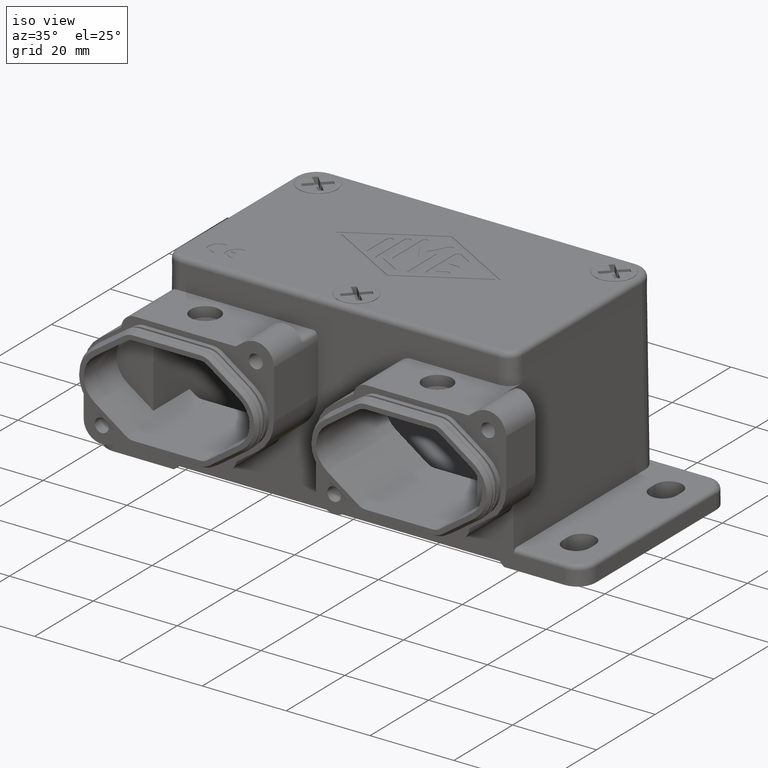
[diagram: clean part render]
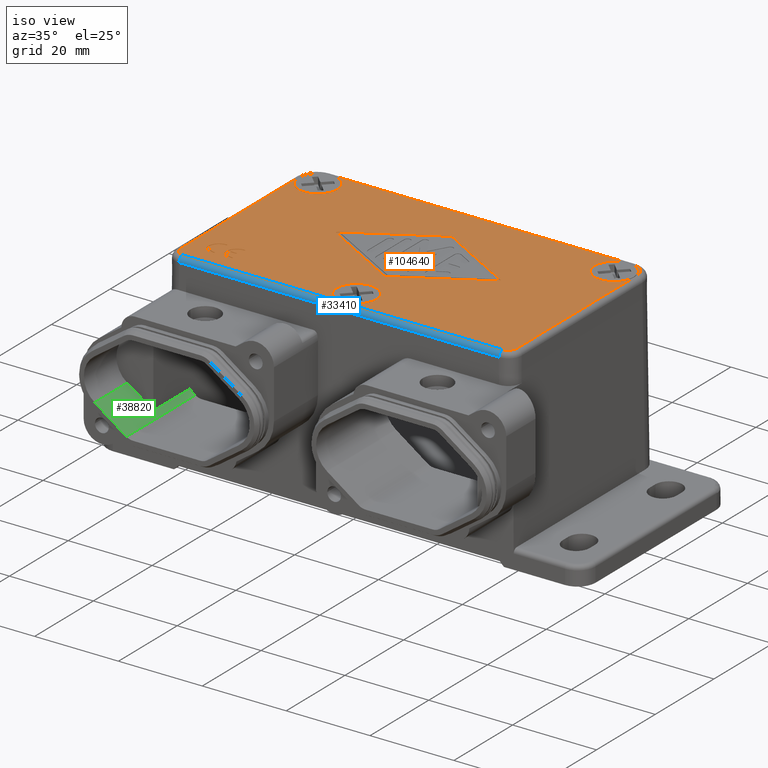
[diagram: same view with three faces highlighted in distinct colors, each labeled with its STEP entity id]
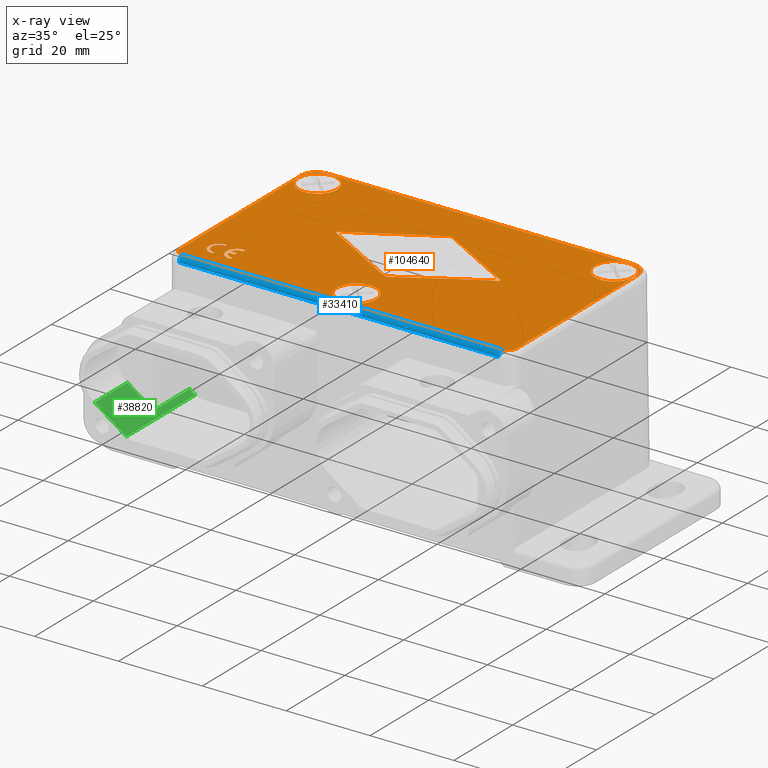
[diagram: x-ray of the same camera — body ghosted, the three highlighted faces saturated]
A machine part, iso view with three faces highlighted in distinct colors.
The next image is the same camera in x-ray (body ghosted, the three faces saturated) — at least one of them is partly hidden behind the body in this view.
Their STEP definitions:

[orange] entity #104640 — the highlighted planar face has unit normal (0, 0, 1).
#33100=CARTESIAN_POINT('',(10.349999479947,-20.200122,21.050000677173));
#33110=VERTEX_POINT('',#33100);
#33160=CARTESIAN_POINT('',(-27.800000520053,-20.200122,21.050000677173))
;
#33170=DIRECTION('',(-1.,0.,0.));
#33180=VECTOR('',#33170,1.);
#33190=LINE('',#33160,#33180);
#33200=CARTESIAN_POINT('',(-65.950000520053,-20.200122,21.050000677173))
;
#33210=VERTEX_POINT('',#33200);
#33220=EDGE_CURVE('',#33110,#33210,#33190,.T.);
#45360=CARTESIAN_POINT('',(12.349999479947,-22.200122,21.050000677173));
#45370=VERTEX_POINT('',#45360);
#45400=CARTESIAN_POINT('',(10.349999479947,-22.200122,21.050000677173));
#45410=DIRECTION('',(0.,0.,1.));
#45420=DIRECTION('',(0.,-1.,0.));
#45430=AXIS2_PLACEMENT_3D('',#45400,#45410,#45420);
#45440=CIRCLE('',#45430,2.);
#45450=EDGE_CURVE('',#45370,#33110,#45440,.T.);
#70360=CARTESIAN_POINT('',(12.349999479947,-63.3001219336676,
21.050000677173));
#70370=VERTEX_POINT('',#70360);
#70420=CARTESIAN_POINT('',(12.349999479947,-22.9001219668338,
21.050000677173));
#70430=DIRECTION('',(0.,1.,0.));
#70440=VECTOR('',#70430,1.);
#70450=LINE('',#70420,#70440);
#70460=EDGE_CURVE('',#70370,#45370,#70450,.T.);
#73730=CARTESIAN_POINT('',(8.549999479947,-67.1001219336676,
21.050000677173));
#73740=VERTEX_POINT('',#73730);
#73770=CARTESIAN_POINT('',(8.549999479947,-63.3001219336676,
21.050000677173));
#73780=DIRECTION('',(0.,0.,1.));
#73790=DIRECTION('',(0.,-1.,0.));
#73800=AXIS2_PLACEMENT_3D('',#73770,#73780,#73790);
#73810=CIRCLE('',#73800,3.8);
#73820=EDGE_CURVE('',#73740,#70370,#73810,.T.);
#101130=CARTESIAN_POINT('',(-27.800000520053,-22.9001219668338,
21.050000677173));
#101140=DIRECTION('',(-0.,0.,1.));
#101150=DIRECTION('',(0.,-1.,0.));
#101160=AXIS2_PLACEMENT_3D('',#101130,#101140,#101150);
#101170=PLANE('',#101160);
#101180=CARTESIAN_POINT('',(7.54999947994703,-62.3002439336676,
21.050000677173));
#101190=DIRECTION('',(-1.94344779344656E-16,1.30236863879995E-16,-1.));
#101200=DIRECTION('',(0.309016994374947,-0.951056516295154,
-1.83918457640462E-16));
#101210=AXIS2_PLACEMENT_3D('',#101180,#101190,#101200);
#101220=CIRCLE('',#101210,4.7);
#101230=CARTESIAN_POINT('',(6.09761960638477,-57.8302783070803,
21.050000677173));
#101240=VERTEX_POINT('',#101230);
#101250=CARTESIAN_POINT('',(9.00237935350928,-66.7702095602548,
21.050000677173));
#101260=VERTEX_POINT('',#101250);
#101270=EDGE_CURVE('',#101240,#101260,#101220,.T.);
#101280=ORIENTED_EDGE('',*,*,#101270,.T.);
#101290=CARTESIAN_POINT('',(3.87937683194589,-59.3648513916076,
21.050000677173));
#101300=VERTEX_POINT('',#101290);
#101310=EDGE_CURVE('',#101300,#101240,#101220,.T.);
#101320=ORIENTED_EDGE('',*,*,#101310,.T.);
#101330=EDGE_CURVE('',#101260,#101300,#101220,.T.);
#101340=ORIENTED_EDGE('',*,*,#101330,.T.);
#101350=EDGE_LOOP('',(#101340,#101320,#101280));
#101360=FACE_BOUND('',#101350,.T.);
#101370=CARTESIAN_POINT('',(-63.150000520053,-62.3002439336676,
21.050000677173));
#101380=DIRECTION('',(-1.94344779344656E-16,1.30236863879995E-16,-1.));
#101390=DIRECTION('',(0.309016994374947,-0.951056516295154,
-1.83918457640462E-16));
#101400=AXIS2_PLACEMENT_3D('',#101370,#101380,#101390);
#101410=CIRCLE('',#101400,4.70000000000001);
#101420=CARTESIAN_POINT('',(-64.6023803936152,-57.8302783070803,
21.050000677173));
#101430=VERTEX_POINT('',#101420);
#101440=CARTESIAN_POINT('',(-61.6976206464907,-66.7702095602548,
21.050000677173));
#101450=VERTEX_POINT('',#101440);
#101460=EDGE_CURVE('',#101430,#101450,#101410,.T.);
#101470=ORIENTED_EDGE('',*,*,#101460,.T.);
#101480=CARTESIAN_POINT('',(-66.8206231680541,-59.3648513916076,
21.050000677173));
#101490=VERTEX_POINT('',#101480);
#101500=EDGE_CURVE('',#101490,#101430,#101410,.T.);
#101510=ORIENTED_EDGE('',*,*,#101500,.T.);
#101520=EDGE_CURVE('',#101450,#101490,#101410,.T.);
#101530=ORIENTED_EDGE('',*,*,#101520,.T.);
#101540=EDGE_LOOP('',(#101530,#101510,#101470));
#101550=FACE_BOUND('',#101540,.T.);
#101560=CARTESIAN_POINT('',(-27.800000520053,-56.5,21.050000677173));
#101570=DIRECTION('',(0.,0.,1.));
#101580=DIRECTION('',(-1.,0.,0.));
#101590=AXIS2_PLACEMENT_3D('',#101560,#101570,#101580);
#101600=CIRCLE('',#101590,0.75);
#101610=CARTESIAN_POINT('',(-28.1721911623186,-57.1511329555551,
21.050000677173));
#101620=VERTEX_POINT('',#101610);
#101630=CARTESIAN_POINT('',(-27.4278161412027,-57.1511365357126,
21.050000677173));
#101640=VERTEX_POINT('',#101630);
#101650=EDGE_CURVE('',#101620,#101640,#101600,.T.);
#101660=ORIENTED_EDGE('',*,*,#101650,.F.);
#101670=CARTESIAN_POINT('',(0.,-41.4736186053743,21.050000677173));
#101680=DIRECTION('',(-0.86818204761683,-0.496245838467033,0.));
#101690=VECTOR('',#101680,1.);
#101700=LINE('',#101670,#101690);
#101710=CARTESIAN_POINT('',(-8.48911816992265,-46.3259299099479,
21.050000677173));
#101720=VERTEX_POINT('',#101710);
#101730=EDGE_CURVE('',#101720,#101640,#101700,.T.);
#101740=ORIENTED_EDGE('',*,*,#101730,.T.);
#101750=CARTESIAN_POINT('',(-8.67541707104315,-46.,21.050000677173));
#101760=DIRECTION('',(0.,0.,1.));
#101770=DIRECTION('',(-1.,0.,0.));
#101780=AXIS2_PLACEMENT_3D('',#101750,#101760,#101770);
#101790=CIRCLE('',#101780,0.375416550990178);
#101800=CARTESIAN_POINT('',(-8.48911816992262,-45.6740700900519,
21.050000677173));
#101810=VERTEX_POINT('',#101800);
#101820=EDGE_CURVE('',#101720,#101810,#101790,.T.);
#101830=ORIENTED_EDGE('',*,*,#101820,.F.);
#101840=CARTESIAN_POINT('',(0.,-50.5263813946254,21.050000677173));
#101850=DIRECTION('',(0.868182047616835,-0.496245838467024,0.));
#101860=VECTOR('',#101850,1.);
#101870=LINE('',#101840,#101860);
#101880=CARTESIAN_POINT('',(-27.4278161412028,-34.8488634642873,
21.050000677173));
#101890=VERTEX_POINT('',#101880);
#101900=EDGE_CURVE('',#101890,#101810,#101870,.T.);
#101910=ORIENTED_EDGE('',*,*,#101900,.T.);
#101920=CARTESIAN_POINT('',(-27.800000520053,-35.5,21.050000677173));
#101930=DIRECTION('',(0.,0.,1.));
#101940=DIRECTION('',(-1.,0.,0.));
#101950=AXIS2_PLACEMENT_3D('',#101920,#101930,#101940);
#101960=CIRCLE('',#101950,0.75);
#101970=CARTESIAN_POINT('',(-28.1721911623186,-34.8488670444449,
21.050000677173));
#101980=VERTEX_POINT('',#101970);
#101990=EDGE_CURVE('',#101890,#101980,#101960,.T.);
#102000=ORIENTED_EDGE('',*,*,#101990,.F.);
#102010=CARTESIAN_POINT('',(0.,-18.7455108354322,21.050000677173));
#102020=DIRECTION('',(0.8681772740735,0.49625418968741,0.));
#102030=VECTOR('',#102020,1.);
#102040=LINE('',#102010,#102030);
#102050=CARTESIAN_POINT('',(-47.1110958411858,-45.6744335222224,
21.050000677173));
#102060=VERTEX_POINT('',#102050);
#102070=EDGE_CURVE('',#102060,#101980,#102040,.T.);
#102080=ORIENTED_EDGE('',*,*,#102070,.T.);
#102090=CARTESIAN_POINT('',(-46.925000520053,-46.,21.050000677173));
#102100=DIRECTION('',(0.,0.,1.));
#102110=DIRECTION('',(-1.,0.,0.));
#102120=AXIS2_PLACEMENT_3D('',#102090,#102100,#102110);
#102130=CIRCLE('',#102120,0.375000000000014);
#102140=CARTESIAN_POINT('',(-47.1110958411858,-46.3255664777776,
21.050000677173));
#102150=VERTEX_POINT('',#102140);
#102160=EDGE_CURVE('',#102060,#102150,#102130,.T.);
#102170=ORIENTED_EDGE('',*,*,#102160,.F.);
#102180=CARTESIAN_POINT('',(0.,-73.254489164568,21.050000677173));
#102190=DIRECTION('',(-0.868177274073497,0.496254189687414,0.));
#102200=VECTOR('',#102190,1.);
#102210=LINE('',#102180,#102200);
#102220=EDGE_CURVE('',#101620,#102150,#102210,.T.);
#102230=ORIENTED_EDGE('',*,*,#102220,.T.);
#102240=EDGE_LOOP('',(#102230,#102170,#102080,#102000,#101910,#101830,
#101740,#101660));
#102250=FACE_BOUND('',#102240,.T.);
#102260=CARTESIAN_POINT('',(5.80004225976489,0.,21.050000677173));
#102270=DIRECTION('',(8.54805752037086E-17,1.,0.));
#102280=VECTOR('',#102270,1.);
#102290=LINE('',#102260,#102280);
#102300=CARTESIAN_POINT('',(5.80004225976489,-24.75,21.050000677173));
#102310=VERTEX_POINT('',#102300);
#102320=CARTESIAN_POINT('',(5.80004225976489,-24.,21.050000677173));
#102330=VERTEX_POINT('',#102320);
#102340=EDGE_CURVE('',#102310,#102330,#102290,.T.);
#102350=ORIENTED_EDGE('',*,*,#102340,.T.);
#102360=CARTESIAN_POINT('',(0.,-24.75,21.050000677173));
#102370=DIRECTION('',(-1.,1.1857622397444E-16,0.));
#102380=VECTOR('',#102370,1.);
#102390=LINE('',#102360,#102380);
#102400=CARTESIAN_POINT('',(6.05004224672631,-24.75,21.050000677173));
#102410=VERTEX_POINT('',#102400);
#102420=EDGE_CURVE('',#102410,#102310,#102390,.T.);
#102430=ORIENTED_EDGE('',*,*,#102420,.T.);
#102440=CARTESIAN_POINT('',(6.05004224672631,-28.25,21.050000677173));
#102450=CARTESIAN_POINT('',(6.67517716642291,-28.2500000048602,
21.050000677173));
#102460=CARTESIAN_POINT('',(7.25301925687241,-27.9163827231399,
21.050000677173));
#102470=CARTESIAN_POINT('',(7.87815417937505,-26.8336172847153,
21.050000677173));
#102480=CARTESIAN_POINT('',(7.87815417937505,-26.1663827152847,
21.050000677173));
#102490=CARTESIAN_POINT('',(7.25301925687241,-25.0836172768601,
21.050000677173));
#102500=CARTESIAN_POINT('',(6.67517716642291,-24.7499999951398,
21.050000677173));
#102510=CARTESIAN_POINT('',(6.05004224672631,-24.75,21.050000677173));
#102520=B_SPLINE_CURVE_WITH_KNOTS('',3,(#102440,#102450,#102460,#102470,
#102480,#102490,#102500,#102510),.UNSPECIFIED.,.F.,.F.,(4,2,2,4),(0.,1.,
2.,3.),.UNSPECIFIED.);
#102530=CARTESIAN_POINT('',(6.05004224672631,-28.25,21.050000677173));
#102540=VERTEX_POINT('',#102530);
#102550=EDGE_CURVE('',#102540,#102410,#102520,.T.);
#102560=ORIENTED_EDGE('',*,*,#102550,.T.);
#102570=CARTESIAN_POINT('',(0.,-28.25,21.050000677173));
#102580=DIRECTION('',(1.,-1.1857622397444E-16,0.));
#102590=VECTOR('',#102580,1.);
#102600=LINE('',#102570,#102590);
#102610=CARTESIAN_POINT('',(5.80004225976489,-28.25,21.050000677173));
#102620=VERTEX_POINT('',#102610);
#102630=EDGE_CURVE('',#102620,#102540,#102600,.T.);
#102640=ORIENTED_EDGE('',*,*,#102630,.T.);
#102650=CARTESIAN_POINT('',(5.80004225976489,0.,21.050000677173));
#102660=DIRECTION('',(8.54805752037086E-17,1.,0.));
#102670=VECTOR('',#102660,1.);
#102680=LINE('',#102650,#102670);
#102690=CARTESIAN_POINT('',(5.80004225976489,-29.,21.050000677173));
#102700=VERTEX_POINT('',#102690);
#102710=EDGE_CURVE('',#102700,#102620,#102680,.T.);
#102720=ORIENTED_EDGE('',*,*,#102710,.T.);
#102730=CARTESIAN_POINT('',(0.,-29.,21.050000677173));
#102740=DIRECTION('',(-1.,1.1857622397444E-16,0.));
#102750=VECTOR('',#102740,1.);
#102760=LINE('',#102730,#102750);
#102770=CARTESIAN_POINT('',(6.05004224672631,-29.,21.050000677173));
#102780=VERTEX_POINT('',#102770);
#102790=EDGE_CURVE('',#102780,#102700,#102760,.T.);
#102800=ORIENTED_EDGE('',*,*,#102790,.T.);
#102810=CARTESIAN_POINT('',(6.05004224672631,-29.,21.050000677173));
#102820=CARTESIAN_POINT('',(6.94309213061921,-29.0000000048602,
21.050000677173));
#102830=CARTESIAN_POINT('',(7.76858082908543,-28.5234038876618,
21.050000677173));
#102840=CARTESIAN_POINT('',(8.66163071578438,-26.9765961201934,
21.050000677173));
#102850=CARTESIAN_POINT('',(8.66163071578438,-26.0234038798066,
21.050000677173));
#102860=CARTESIAN_POINT('',(7.76858082908546,-24.4765961123382,
21.050000677173));
#102870=CARTESIAN_POINT('',(6.94309213061921,-23.9999999951398,
21.050000677173));
#102880=CARTESIAN_POINT('',(6.05004224672631,-24.,21.050000677173));
#102890=B_SPLINE_CURVE_WITH_KNOTS('',3,(#102810,#102820,#102830,#102840,
#102850,#102860,#102870,#102880),.UNSPECIFIED.,.F.,.F.,(4,2,2,4),(0.,1.,
2.,3.),.UNSPECIFIED.);
#102900=CARTESIAN_POINT('',(6.05004224672631,-24.,21.050000677173));
#102910=VERTEX_POINT('',#102900);
#102920=EDGE_CURVE('',#102780,#102910,#102890,.T.);
#102930=ORIENTED_EDGE('',*,*,#102920,.F.);
#102940=CARTESIAN_POINT('',(0.,-24.,21.050000677173));
#102950=DIRECTION('',(1.,-1.1857622397444E-16,0.));
#102960=VECTOR('',#102950,1.);
#102970=LINE('',#102940,#102960);
#102980=EDGE_CURVE('',#102330,#102910,#102970,.T.);
#102990=ORIENTED_EDGE('',*,*,#102980,.T.);
#103000=EDGE_LOOP('',(#102990,#102930,#102800,#102720,#102640,#102560,
#102430,#102350));
#103010=FACE_BOUND('',#103000,.T.);
#103020=CARTESIAN_POINT('',(0.,-26.125,21.050000677173));
#103030=DIRECTION('',(1.,-1.1857622397444E-16,0.));
#103040=VECTOR('',#103030,1.);
#103050=LINE('',#103020,#103040);
#103060=CARTESIAN_POINT('',(2.0500422512614,-26.125,21.050000677173));
#103070=VERTEX_POINT('',#103060);
#103080=CARTESIAN_POINT('',(3.50939154596792,-26.125,21.050000677173));
#103090=VERTEX_POINT('',#103080);
#103100=EDGE_CURVE('',#103070,#103090,#103050,.T.);
#103110=ORIENTED_EDGE('',*,*,#103100,.T.);
#103120=CARTESIAN_POINT('',(2.0500422512614,0.,21.050000677173));
#103130=DIRECTION('',(8.54805752037086E-17,1.,0.));
#103140=VECTOR('',#103130,1.);
#103150=LINE('',#103120,#103140);
#103160=CARTESIAN_POINT('',(2.0500422512614,-26.875,21.050000677173));
#103170=VERTEX_POINT('',#103160);
#103180=EDGE_CURVE('',#103170,#103070,#103150,.T.);
#103190=ORIENTED_EDGE('',*,*,#103180,.T.);
#103200=CARTESIAN_POINT('',(0.,-26.875,21.050000677173));
#103210=DIRECTION('',(-1.,1.1857622397444E-16,0.));
#103220=VECTOR('',#103210,1.);
#103230=LINE('',#103200,#103220);
#103240=CARTESIAN_POINT('',(3.50939154596778,-26.875,21.050000677173));
#103250=VERTEX_POINT('',#103240);
#103260=EDGE_CURVE('',#103250,#103170,#103230,.T.);
#103270=ORIENTED_EDGE('',*,*,#103260,.T.);
#103280=CARTESIAN_POINT('',(1.80004225221727,-26.4999999970744,
21.050000677173));
#103290=DIRECTION('',(0.,0.,1.));
#103300=DIRECTION('',(1.59748765060033E-8,-1.,0.));
#103310=AXIS2_PLACEMENT_3D('',#103280,#103290,#103300);
#103320=CIRCLE('',#103310,1.75000000292558);
#103330=CARTESIAN_POINT('',(1.80004228017331,-28.25,21.050000677173));
#103340=VERTEX_POINT('',#103330);
#103350=EDGE_CURVE('',#103340,#103250,#103320,.T.);
#103360=ORIENTED_EDGE('',*,*,#103350,.T.);
#103370=CARTESIAN_POINT('',(0.,-28.25,21.050000677173));
#103380=DIRECTION('',(1.,-1.1857622397444E-16,0.));
#103390=VECTOR('',#103380,1.);
#103400=LINE('',#103370,#103390);
#103410=CARTESIAN_POINT('',(1.55004228187402,-28.25,21.050000677173));
#103420=VERTEX_POINT('',#103410);
#103430=EDGE_CURVE('',#103420,#103340,#103400,.T.);
#103440=ORIENTED_EDGE('',*,*,#103430,.T.);
#103450=CARTESIAN_POINT('',(1.55004228187402,0.,21.050000677173));
#103460=DIRECTION('',(8.54805752037086E-17,1.,0.));
#103470=VECTOR('',#103460,1.);
#103480=LINE('',#103450,#103470);
#103490=CARTESIAN_POINT('',(1.55004228187402,-29.,21.050000677173));
#103500=VERTEX_POINT('',#103490);
#103510=EDGE_CURVE('',#103500,#103420,#103480,.T.);
#103520=ORIENTED_EDGE('',*,*,#103510,.T.);
#103530=CARTESIAN_POINT('',(0.,-29.,21.050000677173));
#103540=DIRECTION('',(-1.,1.1857622397444E-16,0.));
#103550=VECTOR('',#103540,1.);
#103560=LINE('',#103530,#103550);
#103570=CARTESIAN_POINT('',(1.80004228017331,-29.,21.050000677173));
#103580=VERTEX_POINT('',#103570);
#103590=EDGE_CURVE('',#103580,#103500,#103560,.T.);
#103600=ORIENTED_EDGE('',*,*,#103590,.T.);
#103610=CARTESIAN_POINT('',(1.80004228017331,-29.,21.050000677173));
#103620=CARTESIAN_POINT('',(2.69309215381087,-28.9999999894696,
21.050000677173));
#103630=CARTESIAN_POINT('',(3.51858083619931,-28.5234038689081,
21.050000677173));
#103640=CARTESIAN_POINT('',(4.41163070375713,-26.9765961140723,
21.050000677173));
#103650=CARTESIAN_POINT('',(4.41163070375713,-26.0234038859277,
21.050000677173));
#103660=CARTESIAN_POINT('',(3.51858083619933,-24.4765961310919,
21.050000677173));
#103670=CARTESIAN_POINT('',(2.69309215381089,-24.0000000105304,
21.050000677173));
#103680=CARTESIAN_POINT('',(1.80004228017332,-24.,21.050000677173));
#103690=B_SPLINE_CURVE_WITH_KNOTS('',3,(#103610,#103620,#103630,#103640,
#103650,#103660,#103670,#103680),.UNSPECIFIED.,.F.,.F.,(4,2,2,4),(0.,1.,
2.,3.),.UNSPECIFIED.);
#103700=CARTESIAN_POINT('',(1.80004228017332,-24.,21.050000677173));
#103710=VERTEX_POINT('',#103700);
#103720=EDGE_CURVE('',#103580,#103710,#103690,.T.);
#103730=ORIENTED_EDGE('',*,*,#103720,.F.);
#103740=CARTESIAN_POINT('',(0.,-24.,21.050000677173));
#103750=DIRECTION('',(1.,-1.1857622397444E-16,0.));
#103760=VECTOR('',#103750,1.);
#103770=LINE('',#103740,#103760);
#103780=CARTESIAN_POINT('',(1.55004228187402,-24.,21.050000677173));
#103790=VERTEX_POINT('',#103780);
#103800=EDGE_CURVE('',#103790,#103710,#103770,.T.);
#103810=ORIENTED_EDGE('',*,*,#103800,.T.);
#103820=CARTESIAN_POINT('',(1.55004228187402,0.,21.050000677173));
#103830=DIRECTION('',(8.54805752037086E-17,1.,0.));
#103840=VECTOR('',#103830,1.);
#103850=LINE('',#103820,#103840);
#103860=CARTESIAN_POINT('',(1.55004228187402,-24.7499999999999,
21.050000677173));
#103870=VERTEX_POINT('',#103860);
#103880=EDGE_CURVE('',#103870,#103790,#103850,.T.);
#103890=ORIENTED_EDGE('',*,*,#103880,.T.);
#103900=CARTESIAN_POINT('',(0.,-24.7499999999999,21.050000677173));
#103910=DIRECTION('',(-1.,1.1857622397444E-16,0.));
#103920=VECTOR('',#103910,1.);
#103930=LINE('',#103900,#103920);
#103940=CARTESIAN_POINT('',(1.80004229491272,-24.7499999999999,
21.050000677173));
#103950=VERTEX_POINT('',#103940);
#103960=EDGE_CURVE('',#103950,#103870,#103930,.T.);
#103970=ORIENTED_EDGE('',*,*,#103960,.T.);
#103980=CARTESIAN_POINT('',(1.80004225221725,-26.5000000029256,
21.050000677173));
#103990=DIRECTION('',(0.,0.,1.));
#104000=DIRECTION('',(0.976771023734034,0.214285713927848,0.));
#104010=AXIS2_PLACEMENT_3D('',#103980,#103990,#104000);
#104020=CIRCLE('',#104010,1.75000000292576);
#104030=EDGE_CURVE('',#103090,#103950,#104020,.T.);
#104040=ORIENTED_EDGE('',*,*,#104030,.T.);
#104050=EDGE_LOOP('',(#104040,#103970,#103890,#103810,#103730,#103600,
#103520,#103440,#103360,#103270,#103190,#103110));
#104060=FACE_BOUND('',#104050,.T.);
#104070=CARTESIAN_POINT('',(-27.800000520053,-25.0002439336676,
21.050000677173));
#104080=DIRECTION('',(-1.94344779344656E-16,1.30236863879995E-16,-1.));
#104090=DIRECTION('',(0.309016994374947,-0.951056516295154,
-1.83918457640462E-16));
#104100=AXIS2_PLACEMENT_3D('',#104070,#104080,#104090);
#104110=CIRCLE('',#104100,4.70000000000001);
#104120=CARTESIAN_POINT('',(-29.2523803936152,-20.5302783070803,
21.050000677173));
#104130=VERTEX_POINT('',#104120);
#104140=CARTESIAN_POINT('',(-26.3476206464907,-29.4702095602548,
21.050000677173));
#104150=VERTEX_POINT('',#104140);
#104160=EDGE_CURVE('',#104130,#104150,#104110,.T.);
#104170=ORIENTED_EDGE('',*,*,#104160,.T.);
#104180=CARTESIAN_POINT('',(-31.4706231680541,-22.0648513916076,
21.050000677173));
#104190=VERTEX_POINT('',#104180);
#104200=EDGE_CURVE('',#104190,#104130,#104110,.T.);
#104210=ORIENTED_EDGE('',*,*,#104200,.T.);
#104220=EDGE_CURVE('',#104150,#104190,#104110,.T.);
#104230=ORIENTED_EDGE('',*,*,#104220,.T.);
#104240=EDGE_LOOP('',(#104230,#104210,#104170));
#104250=FACE_BOUND('',#104240,.T.);
#104260=ORIENTED_EDGE('',*,*,#33220,.T.);
#104270=ORIENTED_EDGE('',*,*,#45450,.T.);
#104280=ORIENTED_EDGE('',*,*,#70460,.T.);
#104290=ORIENTED_EDGE('',*,*,#73820,.T.);
#104300=CARTESIAN_POINT('',(-27.800000520053,-67.1001219336676,
21.050000677173));
#104310=DIRECTION('',(1.,0.,0.));
#104320=VECTOR('',#104310,1.);
#104330=LINE('',#104300,#104320);
#104340=CARTESIAN_POINT('',(-64.150000520053,-67.1001219336676,
21.050000677173));
#104350=VERTEX_POINT('',#104340);
#104360=EDGE_CURVE('',#104350,#73740,#104330,.T.);
#104370=ORIENTED_EDGE('',*,*,#104360,.T.);
#104380=CARTESIAN_POINT('',(-64.150000520053,-63.3001219336676,
21.050000677173));
#104390=DIRECTION('',(0.,0.,1.));
#104400=DIRECTION('',(0.,-1.,0.));
#104410=AXIS2_PLACEMENT_3D('',#104380,#104390,#104400);
#104420=CIRCLE('',#104410,3.8);
#104430=CARTESIAN_POINT('',(-67.950000520053,-63.3001219336676,
21.050000677173));
#104440=VERTEX_POINT('',#104430);
#104450=EDGE_CURVE('',#104440,#104350,#104420,.T.);
#104460=ORIENTED_EDGE('',*,*,#104450,.T.);
#104470=CARTESIAN_POINT('',(-67.950000520053,-22.9001219668338,
21.050000677173));
#104480=DIRECTION('',(0.,-1.,0.));
#104490=VECTOR('',#104480,1.);
#104500=LINE('',#104470,#104490);
#104510=CARTESIAN_POINT('',(-67.950000520053,-22.200122,21.050000677173)
);
#104520=VERTEX_POINT('',#104510);
#104530=EDGE_CURVE('',#104520,#104440,#104500,.T.);
#104540=ORIENTED_EDGE('',*,*,#104530,.T.);
#104550=CARTESIAN_POINT('',(-65.950000520053,-22.200122,21.050000677173)
);
#104560=DIRECTION('',(0.,0.,1.));
#104570=DIRECTION('',(0.,-1.,0.));
#104580=AXIS2_PLACEMENT_3D('',#104550,#104560,#104570);
#104590=CIRCLE('',#104580,2.);
#104600=EDGE_CURVE('',#33210,#104520,#104590,.T.);
#104610=ORIENTED_EDGE('',*,*,#104600,.T.);
#104620=EDGE_LOOP('',(#104610,#104540,#104460,#104370,#104290,#104280,
#104270,#104260));
#104630=FACE_OUTER_BOUND('',#104620,.T.);
#104640=ADVANCED_FACE('',(#101360,#101550,#102250,#103010,#104060,
#104250,#104630),#101170,.T.);

[blue] entity #33410 — the highlighted cylindrical surface (edge-blend (fillet) strip) has radius 1.2 mm, axis along (1, 0, 0).
#33000=CARTESIAN_POINT('',(-27.800000520053,-20.200122,19.850000677173))
;
#33010=DIRECTION('',(-1.,0.,0.));
#33020=DIRECTION('',(0.,1.,0.));
#33030=AXIS2_PLACEMENT_3D('',#33000,#33010,#33020);
#33040=CYLINDRICAL_SURFACE('',#33030,1.2);
#33050=CARTESIAN_POINT('',(10.349999479947,-20.200122,19.850000677173));
#33060=DIRECTION('',(-1.,0.,0.));
#33070=DIRECTION('',(0.,1.,0.));
#33080=AXIS2_PLACEMENT_3D('',#33050,#33060,#33070);
#33090=CIRCLE('',#33080,1.2);
#33100=CARTESIAN_POINT('',(10.349999479947,-20.200122,21.050000677173));
#33110=VERTEX_POINT('',#33100);
#33120=CARTESIAN_POINT('',(10.349999479947,-19.000122,19.850000677173));
#33130=VERTEX_POINT('',#33120);
#33140=EDGE_CURVE('',#33110,#33130,#33090,.T.);
#33150=ORIENTED_EDGE('',*,*,#33140,.T.);
#33160=CARTESIAN_POINT('',(-27.800000520053,-20.200122,21.050000677173))
;
#33170=DIRECTION('',(-1.,0.,0.));
#33180=VECTOR('',#33170,1.);
#33190=LINE('',#33160,#33180);
#33200=CARTESIAN_POINT('',(-65.950000520053,-20.200122,21.050000677173))
;
#33210=VERTEX_POINT('',#33200);
#33220=EDGE_CURVE('',#33110,#33210,#33190,.T.);
#33230=ORIENTED_EDGE('',*,*,#33220,.F.);
#33240=CARTESIAN_POINT('',(-65.950000520053,-20.200122,19.850000677173))
;
#33250=DIRECTION('',(-1.,0.,0.));
#33260=DIRECTION('',(0.,1.,0.));
#33270=AXIS2_PLACEMENT_3D('',#33240,#33250,#33260);
#33280=CIRCLE('',#33270,1.2);
#33290=CARTESIAN_POINT('',(-65.950000520053,-19.000122,19.850000677173))
;
#33300=VERTEX_POINT('',#33290);
#33310=EDGE_CURVE('',#33210,#33300,#33280,.T.);
#33320=ORIENTED_EDGE('',*,*,#33310,.F.);
#33330=CARTESIAN_POINT('',(-27.800000520053,-19.000122,19.850000677173))
;
#33340=DIRECTION('',(-1.,0.,0.));
#33350=VECTOR('',#33340,1.);
#33360=LINE('',#33330,#33350);
#33370=EDGE_CURVE('',#33130,#33300,#33360,.T.);
#33380=ORIENTED_EDGE('',*,*,#33370,.T.);
#33390=EDGE_LOOP('',(#33380,#33320,#33230,#33150));
#33400=FACE_OUTER_BOUND('',#33390,.T.);
#33410=ADVANCED_FACE('',(#33400),#33040,.T.);

[green] entity #38820 — the highlighted planar face has unit normal (-0.5736, 0, -0.8192).
#19140=CARTESIAN_POINT('',(17.0859880814704,-11.,-4.84682679298942));
#19150=VERTEX_POINT('',#19140);
#19230=CARTESIAN_POINT('',(10.864022685535,-11.,-9.20349386570334));
#19240=VERTEX_POINT('',#19230);
#19270=CARTESIAN_POINT('',(0.,-11.,-16.8105644453973));
#19280=DIRECTION('',(0.819152044288954,0.,0.5735764363511));
#19290=VECTOR('',#19280,1.);
#19300=LINE('',#19270,#19290);
#19310=EDGE_CURVE('',#19240,#19150,#19300,.T.);
#31150=CARTESIAN_POINT('',(17.0859880814704,0.100000000000002,
-4.84682679298942));
#31160=VERTEX_POINT('',#31150);
#31190=CARTESIAN_POINT('',(0.,0.0999999999999997,-16.8105644453973));
#31200=DIRECTION('',(0.819152044288954,0.,0.5735764363511));
#31210=VECTOR('',#31200,1.);
#31220=LINE('',#31190,#31210);
#31230=CARTESIAN_POINT('',(9.49554844837712,0.0999999999999997,
-10.1617098424072));
#31240=VERTEX_POINT('',#31230);
#31250=EDGE_CURVE('',#31240,#31160,#31220,.T.);
#38450=CARTESIAN_POINT('',(0.,0.0999999999999943,-16.8105644453973));
#38460=DIRECTION('',(0.5735764363511,0.,-0.819152044288954));
#38470=DIRECTION('',(-0.819152044288954,0.,-0.5735764363511));
#38480=AXIS2_PLACEMENT_3D('',#38450,#38460,#38470);
#38490=PLANE('',#38480);
#38500=CARTESIAN_POINT('',(9.49554844837712,0.,-10.1617098424072));
#38510=DIRECTION('',(0.,-1.,0.));
#38520=VECTOR('',#38510,1.);
#38530=LINE('',#38500,#38520);
#38540=CARTESIAN_POINT('',(9.49554844837712,-23.3397190907281,
-10.1617098424072));
#38550=VERTEX_POINT('',#38540);
#38560=EDGE_CURVE('',#31240,#38550,#38530,.T.);
#38570=ORIENTED_EDGE('',*,*,#38560,.T.);
#38580=ORIENTED_EDGE('',*,*,#31250,.F.);
#38590=CARTESIAN_POINT('',(17.0859880814704,0.0999999999999943,
-4.84682679298942));
#38600=DIRECTION('',(0.,-1.,0.));
#38610=VECTOR('',#38600,1.);
#38620=LINE('',#38590,#38610);
#38630=EDGE_CURVE('',#31160,#19150,#38620,.T.);
#38640=ORIENTED_EDGE('',*,*,#38630,.F.);
#38650=ORIENTED_EDGE('',*,*,#19310,.T.);
#38660=CARTESIAN_POINT('',(10.864022685535,0.,-9.20349386570334));
#38670=DIRECTION('',(0.,1.,0.));
#38680=VECTOR('',#38670,1.);
#38690=LINE('',#38660,#38680);
#38700=CARTESIAN_POINT('',(10.864022685535,-23.3397190907281,
-9.20349386570334));
#38710=VERTEX_POINT('',#38700);
#38720=EDGE_CURVE('',#38710,#19240,#38690,.T.);
#38730=ORIENTED_EDGE('',*,*,#38720,.T.);
#38740=CARTESIAN_POINT('',(0.,-23.3397190907281,-16.8105644453973));
#38750=DIRECTION('',(-0.819152044288954,0.,-0.5735764363511));
#38760=VECTOR('',#38750,1.);
#38770=LINE('',#38740,#38760);
#38780=EDGE_CURVE('',#38710,#38550,#38770,.T.);
#38790=ORIENTED_EDGE('',*,*,#38780,.F.);
#38800=EDGE_LOOP('',(#38790,#38730,#38650,#38640,#38580,#38570));
#38810=FACE_OUTER_BOUND('',#38800,.T.);
#38820=ADVANCED_FACE('',(#38810),#38490,.F.);